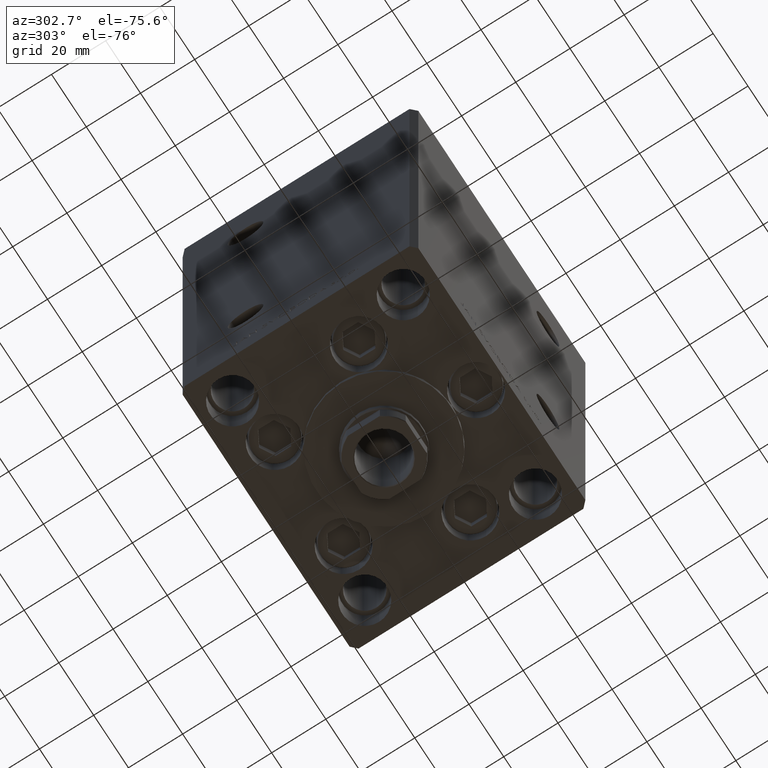
[diagram: clean part render]
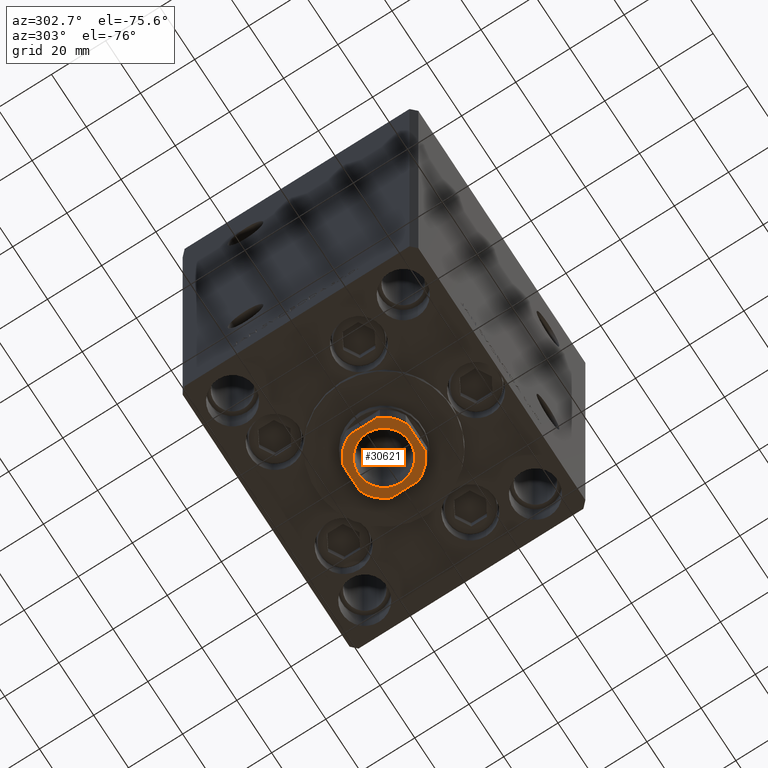
[diagram: same view with one face highlighted and labeled with its STEP entity id]
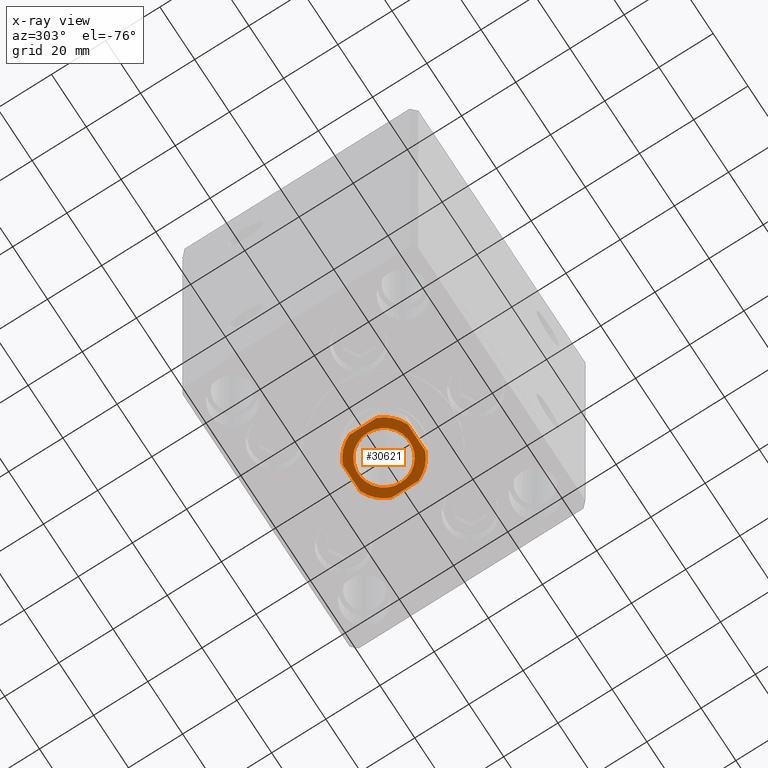
[diagram: x-ray of the same camera — body ghosted, the highlighted face saturated]
A machine part, auxiliary view. The second image highlights one B-rep face of the part: STEP entity #30621.
The next image is the same camera in x-ray: the body ghosted, the highlighted face saturated — about 0% of this face is hidden behind the body in this view.
In plain terms, the highlighted planar face has unit normal (0, 0, -1).
Its self-contained STEP definition (entity closure, byte-faithful):
#575 = AXIS2_PLACEMENT_3D ( 'NONE', #49989, #27145, #7316 ) ;
#742 = CARTESIAN_POINT ( 'NONE',  ( -9.549999999999988276, 1.169537693185721178E-15, 150.2500000000000000 ) ) ;
#871 = AXIS2_PLACEMENT_3D ( 'NONE', #36904, #20888, #48068 ) ;
#1283 = EDGE_CURVE ( 'NONE', #19184, #11387, #15186, .T. ) ;
#1667 = CARTESIAN_POINT ( 'NONE',  ( 0.000000000000000000, 0.000000000000000000, 150.2500000000000000 ) ) ;
#2798 = CARTESIAN_POINT ( 'NONE',  ( 5.000000000000002665, 12.00000000000000000, 150.2500000000000000 ) ) ;
#3173 = VECTOR ( 'NONE', #18487, 1000.000000000000000 ) ;
#4280 = CARTESIAN_POINT ( 'NONE',  ( 0.000000000000000000, 0.000000000000000000, 150.2500000000000000 ) ) ;
#4857 = CARTESIAN_POINT ( 'NONE',  ( 12.00000000000000178, -4.999999999999990230, 150.2500000000000000 ) ) ;
#4894 = EDGE_CURVE ( 'NONE', #30846, #31477, #27383, .T. ) ;
#5771 = EDGE_LOOP ( 'NONE', ( #49111, #17028, #36336, #17377, #10220, #36907, #40247, #18227 ) ) ;
#6632 = LINE ( 'NONE', #40912, #26129 ) ;
#7316 = DIRECTION ( 'NONE',  ( 1.000000000000000000, 0.000000000000000000, 0.000000000000000000 ) ) ;
#7359 = VECTOR ( 'NONE', #17757, 1000.000000000000000 ) ;
#7664 = FACE_BOUND ( 'NONE', #23109, .T. ) ;
#7896 = VERTEX_POINT ( 'NONE', #4857 ) ;
#10220 = ORIENTED_EDGE ( 'NONE', *, *, #15961, .T. ) ;
#11186 = CARTESIAN_POINT ( 'NONE',  ( -4.999999999999992895, -12.00000000000000178, 150.2500000000000000 ) ) ;
#11387 = VERTEX_POINT ( 'NONE', #12140 ) ;
#12140 = CARTESIAN_POINT ( 'NONE',  ( 9.549999999999988276, 0.000000000000000000, 150.2500000000000000 ) ) ;
#12808 = CARTESIAN_POINT ( 'NONE',  ( -5.000000000000001776, 11.99999999999999822, 150.2500000000000000 ) ) ;
#13062 = CIRCLE ( 'NONE', #30949, 13.00000000000000000 ) ;
#13548 = VERTEX_POINT ( 'NONE', #34214 ) ;
#15020 = CARTESIAN_POINT ( 'NONE',  ( 0.000000000000000000, 0.000000000000000000, 150.2500000000000000 ) ) ;
#15186 = CIRCLE ( 'NONE', #16017, 9.549999999999988276 ) ;
#15961 = EDGE_CURVE ( 'NONE', #7896, #16428, #6632, .T. ) ;
#16017 = AXIS2_PLACEMENT_3D ( 'NONE', #1667, #17131, #29112 ) ;
#16428 = VERTEX_POINT ( 'NONE', #28147 ) ;
#17028 = ORIENTED_EDGE ( 'NONE', *, *, #30630, .T. ) ;
#17079 = CIRCLE ( 'NONE', #871, 9.549999999999988276 ) ;
#17131 = DIRECTION ( 'NONE',  ( 0.000000000000000000, -0.000000000000000000, -1.000000000000000000 ) ) ;
#17377 = ORIENTED_EDGE ( 'NONE', *, *, #42285, .T. ) ;
#17757 = DIRECTION ( 'NONE',  ( -1.000000000000000000, -7.228014483236695816E-17, -0.000000000000000000 ) ) ;
#18227 = ORIENTED_EDGE ( 'NONE', *, *, #42482, .T. ) ;
#18487 = DIRECTION ( 'NONE',  ( 1.000000000000000000, 7.228014483236695816E-17, 0.000000000000000000 ) ) ;
#19079 = FACE_OUTER_BOUND ( 'NONE', #5771, .T. ) ;
#19184 = VERTEX_POINT ( 'NONE', #742 ) ;
#20085 = DIRECTION ( 'NONE',  ( 1.000000000000000000, 0.000000000000000000, 0.000000000000000000 ) ) ;
#20888 = DIRECTION ( 'NONE',  ( 0.000000000000000000, -0.000000000000000000, -1.000000000000000000 ) ) ;
#21359 = DIRECTION ( 'NONE',  ( -1.445602896647339163E-16, 1.000000000000000000, -0.000000000000000000 ) ) ;
#23109 = EDGE_LOOP ( 'NONE', ( #42858, #33467 ) ) ;
#23284 = CARTESIAN_POINT ( 'NONE',  ( -11.99999999999999822, 11.99999999999999822, 150.2500000000000000 ) ) ;
#25852 = DIRECTION ( 'NONE',  ( -0.000000000000000000, 0.000000000000000000, 1.000000000000000000 ) ) ;
#26019 = EDGE_CURVE ( 'NONE', #11387, #19184, #17079, .T. ) ;
#26129 = VECTOR ( 'NONE', #21359, 1000.000000000000000 ) ;
#26393 = CARTESIAN_POINT ( 'NONE',  ( -11.99999999999999645, -12.00000000000000178, 150.2500000000000000 ) ) ;
#26470 = VERTEX_POINT ( 'NONE', #44706 ) ;
#26489 = EDGE_CURVE ( 'NONE', #26470, #13548, #33301, .T. ) ;
#26492 = EDGE_CURVE ( 'NONE', #42956, #38843, #42329, .T. ) ;
#27145 = DIRECTION ( 'NONE',  ( -0.000000000000000000, 0.000000000000000000, 1.000000000000000000 ) ) ;
#27338 = CIRCLE ( 'NONE', #575, 13.00000000000000000 ) ;
#27383 = LINE ( 'NONE', #26393, #3173 ) ;
#27492 = DIRECTION ( 'NONE',  ( 1.000000000000000000, 0.000000000000000000, 0.000000000000000000 ) ) ;
#28003 = CIRCLE ( 'NONE', #46622, 13.00000000000000000 ) ;
#28147 = CARTESIAN_POINT ( 'NONE',  ( 12.00000000000000178, 4.999999999999994671, 150.2500000000000000 ) ) ;
#28494 = DIRECTION ( 'NONE',  ( -0.000000000000000000, 0.000000000000000000, 1.000000000000000000 ) ) ;
#29112 = DIRECTION ( 'NONE',  ( 1.000000000000000000, 0.000000000000000000, 0.000000000000000000 ) ) ;
#29315 = VECTOR ( 'NONE', #33561, 1000.000000000000000 ) ;
#29486 = CARTESIAN_POINT ( 'NONE',  ( -11.99999999999999822, 11.99999999999999822, 150.2500000000000000 ) ) ;
#29674 = DIRECTION ( 'NONE',  ( 1.000000000000000000, 0.000000000000000000, 0.000000000000000000 ) ) ;
#30621 = ADVANCED_FACE ( 'NONE', ( #7664, #19079 ), #31309, .T. ) ;
#30630 = EDGE_CURVE ( 'NONE', #13548, #30846, #13062, .T. ) ;
#30846 = VERTEX_POINT ( 'NONE', #11186 ) ;
#30949 = AXIS2_PLACEMENT_3D ( 'NONE', #39403, #28494, #20085 ) ;
#31309 = PLANE ( 'NONE',  #43099 ) ;
#31477 = VERTEX_POINT ( 'NONE', #47278 ) ;
#33301 = LINE ( 'NONE', #29486, #29315 ) ;
#33467 = ORIENTED_EDGE ( 'NONE', *, *, #1283, .T. ) ;
#33561 = DIRECTION ( 'NONE',  ( 7.228014483236695816E-17, -1.000000000000000000, 0.000000000000000000 ) ) ;
#34214 = CARTESIAN_POINT ( 'NONE',  ( -11.99999999999999822, -5.000000000000001776, 150.2500000000000000 ) ) ;
#34482 = CARTESIAN_POINT ( 'NONE',  ( 0.000000000000000000, 0.000000000000000000, 150.2500000000000000 ) ) ;
#35044 = DIRECTION ( 'NONE',  ( -0.000000000000000000, 0.000000000000000000, 1.000000000000000000 ) ) ;
#35530 = DIRECTION ( 'NONE',  ( 1.000000000000000000, 0.000000000000000000, 0.000000000000000000 ) ) ;
#36336 = ORIENTED_EDGE ( 'NONE', *, *, #4894, .T. ) ;
#36904 = CARTESIAN_POINT ( 'NONE',  ( 0.000000000000000000, 0.000000000000000000, 150.2500000000000000 ) ) ;
#36907 = ORIENTED_EDGE ( 'NONE', *, *, #48140, .T. ) ;
#38843 = VERTEX_POINT ( 'NONE', #12808 ) ;
#39403 = CARTESIAN_POINT ( 'NONE',  ( 0.000000000000000000, 0.000000000000000000, 150.2500000000000000 ) ) ;
#40247 = ORIENTED_EDGE ( 'NONE', *, *, #26492, .T. ) ;
#40912 = CARTESIAN_POINT ( 'NONE',  ( 12.00000000000000000, 12.00000000000000000, 150.2500000000000000 ) ) ;
#42285 = EDGE_CURVE ( 'NONE', #31477, #7896, #28003, .T. ) ;
#42329 = LINE ( 'NONE', #23284, #7359 ) ;
#42482 = EDGE_CURVE ( 'NONE', #38843, #26470, #49842, .T. ) ;
#42858 = ORIENTED_EDGE ( 'NONE', *, *, #26019, .T. ) ;
#42956 = VERTEX_POINT ( 'NONE', #2798 ) ;
#43099 = AXIS2_PLACEMENT_3D ( 'NONE', #15020, #46033, #27492 ) ;
#43390 = AXIS2_PLACEMENT_3D ( 'NONE', #34482, #25852, #29674 ) ;
#44706 = CARTESIAN_POINT ( 'NONE',  ( -11.99999999999999822, 5.000000000000000888, 150.2500000000000000 ) ) ;
#46033 = DIRECTION ( 'NONE',  ( -0.000000000000000000, 0.000000000000000000, 1.000000000000000000 ) ) ;
#46622 = AXIS2_PLACEMENT_3D ( 'NONE', #4280, #35044, #35530 ) ;
#47278 = CARTESIAN_POINT ( 'NONE',  ( 4.999999999999993783, -12.00000000000000178, 150.2500000000000000 ) ) ;
#48068 = DIRECTION ( 'NONE',  ( 1.000000000000000000, 0.000000000000000000, 0.000000000000000000 ) ) ;
#48140 = EDGE_CURVE ( 'NONE', #16428, #42956, #27338, .T. ) ;
#49111 = ORIENTED_EDGE ( 'NONE', *, *, #26489, .T. ) ;
#49842 = CIRCLE ( 'NONE', #43390, 13.00000000000000000 ) ;
#49989 = CARTESIAN_POINT ( 'NONE',  ( 0.000000000000000000, 0.000000000000000000, 150.2500000000000000 ) ) ;